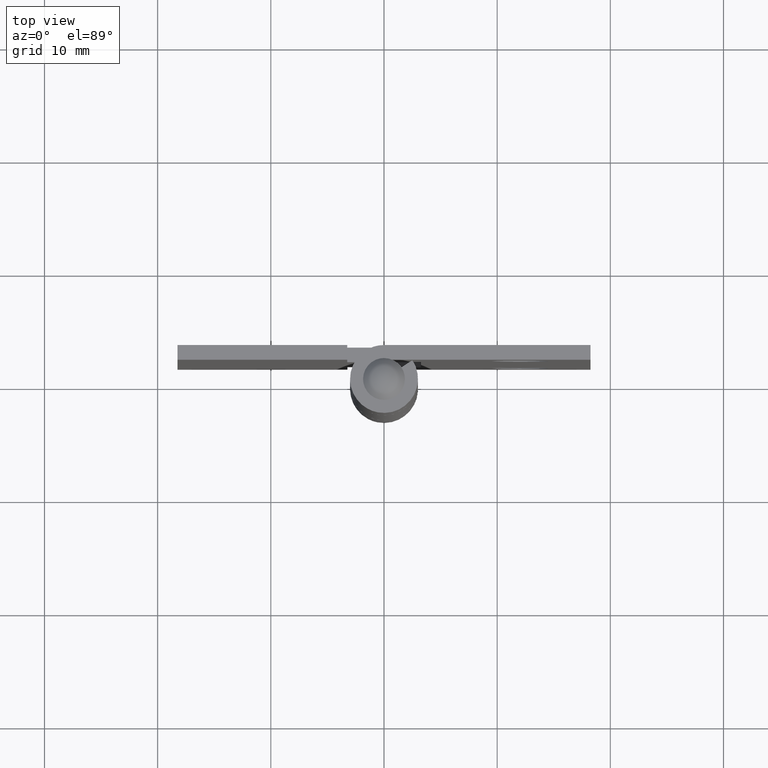
[diagram: clean part render]
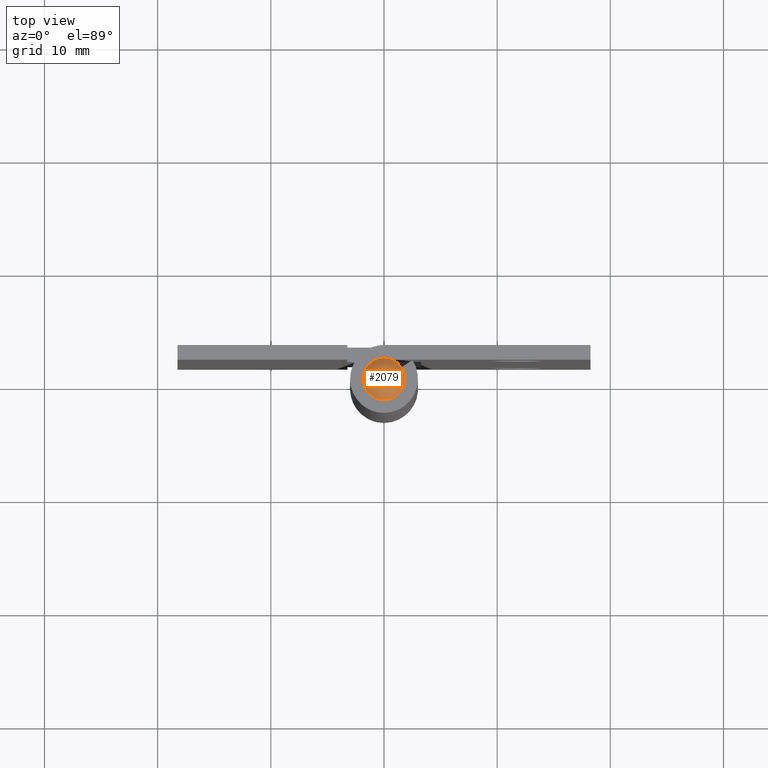
[diagram: same view with one face highlighted and labeled with its STEP entity id]
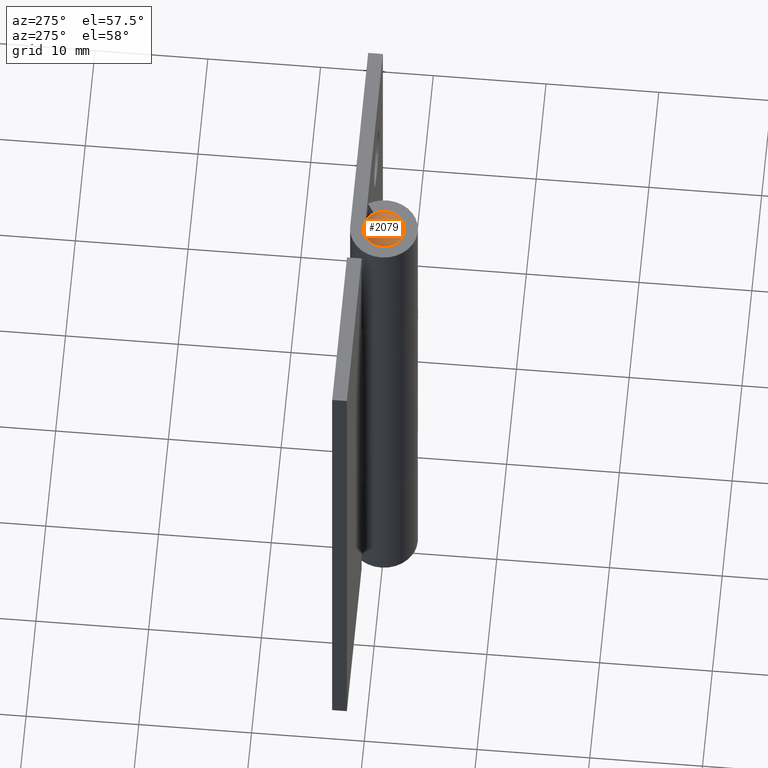
[diagram: same view with one face highlighted and labeled with its STEP entity id]
A machine part, top view. The second image highlights one B-rep face of the part: STEP entity #2079.
A second angle (auxiliary view) of the same face is appended — the face is thin or edge-on in the first view.
In plain terms, the highlighted face is a freeform B-spline surface patch.
Its self-contained STEP definition (entity closure, byte-faithful):
#1978=CARTESIAN_POINT('',(-1.849999832371945,0.0,50.999991999999999));
#1979=VERTEX_POINT('',#1978);
#1980=CARTESIAN_POINT('',(0.000000665241690,1.849999832371826,50.999991999999999));
#1981=VERTEX_POINT('',#1980);
#1982=CARTESIAN_POINT('',(-1.849999832371945,0.0,50.999991999999999));
#1983=CARTESIAN_POINT('',(-1.850016640789123,0.128650294420443,50.999992000000091));
#1984=CARTESIAN_POINT('',(-1.823057305751236,0.385943846764462,50.999991999999843));
#1985=CARTESIAN_POINT('',(-1.701267369636377,0.762402570855216,50.999992000000191));
#1986=CARTESIAN_POINT('',(-1.517227314252216,1.078137414983173,50.999991999999850));
#1987=CARTESIAN_POINT('',(-1.242597332428976,1.392675609736863,50.999991999999963));
#1988=CARTESIAN_POINT('',(-0.889215141688170,1.648117006538312,50.999992000000091));
#1989=CARTESIAN_POINT('',(-0.438911558514225,1.815426388110510,50.999991999999942));
#1990=CARTESIAN_POINT('',(-0.143783961838430,1.850025091454358,50.999992000000042));
#1991=CARTESIAN_POINT('',(0.000000665241690,1.849999832371826,50.999991999999999));
#1992=B_SPLINE_CURVE_WITH_KNOTS('',3,(#1982,#1983,#1984,#1985,#1986,#1987,#1988,#1989,#1990,#1991),.UNSPECIFIED.,.F.,.U.,(4,1,1,1,1,1,1,4),(0.000000073667235,0.385950428613312,0.771904188103778,1.180574316906528,1.475676315553560,2.020567561823910,2.474638995333617,2.905991549958694),.UNSPECIFIED.);
#1993=EDGE_CURVE('',#1979,#1981,#1992,.T.);
#1995=CARTESIAN_POINT('',(1.849999832371945,0.0,50.999991999999999));
#1996=VERTEX_POINT('',#1995);
#1997=CARTESIAN_POINT('',(0.000000665241690,1.849999832371826,50.999991999999999));
#1998=CARTESIAN_POINT('',(0.128651033958599,1.850019056619461,50.999992000000013));
#1999=CARTESIAN_POINT('',(0.385935891643017,1.823042520395598,50.999992000000049));
#2000=CARTESIAN_POINT('',(0.820362929646306,1.682597291554843,50.999991999999587));
#2001=CARTESIAN_POINT('',(1.173680354226304,1.452739556523690,50.999992000000738));
#2002=CARTESIAN_POINT('',(1.461405720867216,1.150393936825342,50.999991999999537));
#2003=CARTESIAN_POINT('',(1.666679359640231,0.839160052652302,50.999992000000333));
#2004=CARTESIAN_POINT('',(1.815431411425448,0.438914582448884,50.999991999999871));
#2005=CARTESIAN_POINT('',(1.850024947244144,0.143784890743250,50.999992000000042));
#2006=CARTESIAN_POINT('',(1.849999832371945,0.0,50.999991999999999));
#2007=B_SPLINE_CURVE_WITH_KNOTS('',3,(#1997,#1998,#1999,#2000,#2001,#2002,#2003,#2004,#2005,#2006),.UNSPECIFIED.,.F.,.U.,(4,1,1,1,1,1,1,4),(0.000000073898482,0.385950329082652,0.771903989126969,1.362195138434383,1.634604146662832,2.020567040022371,2.474638356356674,2.905990800071560),.UNSPECIFIED.);
#2008=EDGE_CURVE('',#1981,#1996,#2007,.T.);
#2010=CARTESIAN_POINT('',(-0.000000665241701,-1.849999832371826,50.999992000000013));
#2011=VERTEX_POINT('',#2010);
#2012=CARTESIAN_POINT('',(1.849999832371945,0.0,50.999991999999999));
#2013=CARTESIAN_POINT('',(1.850065762082334,-0.174063603737082,50.999991999999942));
#2014=CARTESIAN_POINT('',(1.813410694372309,-0.431320664181383,50.999992000000148));
#2015=CARTESIAN_POINT('',(1.686037032885145,-0.780480698522993,50.999991999999878));
#2016=CARTESIAN_POINT('',(1.519325391472601,-1.079084276766973,50.999992000000027));
#2017=CARTESIAN_POINT('',(1.293786736654018,-1.337312411898839,50.999992000000269));
#2018=CARTESIAN_POINT('',(1.002193540002617,-1.567766170475532,50.999991999999573));
#2019=CARTESIAN_POINT('',(0.597720794804394,-1.780838076362697,50.999992000000439));
#2020=CARTESIAN_POINT('',(0.227060796821590,-1.850208246156835,50.999991999999907));
#2021=CARTESIAN_POINT('',(-0.000000665241701,-1.849999832371826,50.999992000000013));
#2022=B_SPLINE_CURVE_WITH_KNOTS('',3,(#2012,#2013,#2014,#2015,#2016,#2017,#2018,#2019,#2020,#2021),.UNSPECIFIED.,.F.,.U.,(4,1,1,1,1,1,1,4),(0.000000073667188,0.522165999190207,0.771904188103759,1.112453658969567,1.543796417263995,1.793539027221947,2.224900194718845,2.905991549958701),.UNSPECIFIED.);
#2023=EDGE_CURVE('',#1996,#2011,#2022,.T.);
#2025=CARTESIAN_POINT('',(-0.000000665241701,-1.849999832371826,50.999992000000013));
#2026=CARTESIAN_POINT('',(-0.128651180547190,-1.850019084137665,50.999991999999963));
#2027=CARTESIAN_POINT('',(-0.385935053876655,-1.823041776776693,50.999992000000027));
#2028=CARTESIAN_POINT('',(-0.820366949290053,-1.682600892688338,50.999991999999892));
#2029=CARTESIAN_POINT('',(-1.173668682880030,-1.452729356963000,50.999992000000361));
#2030=CARTESIAN_POINT('',(-1.487599003667435,-1.122936895200064,50.999991999999793));
#2031=CARTESIAN_POINT('',(-1.699946040731774,-0.778372728431409,50.999992000000411));
#2032=CARTESIAN_POINT('',(-1.826258426262490,-0.370813337610739,50.999991999999949));
#2033=CARTESIAN_POINT('',(-1.850007473334517,-0.113512991389882,50.999991999999978));
#2034=CARTESIAN_POINT('',(-1.849999832371945,0.0,50.999991999999999));
#2035=B_SPLINE_CURVE_WITH_KNOTS('',3,(#2025,#2026,#2027,#2028,#2029,#2030,#2031,#2032,#2033,#2034),.UNSPECIFIED.,.F.,.U.,(4,1,1,1,1,1,1,4),(0.000000073898411,0.385950329082601,0.771903989126931,1.362195138434362,1.634604146662827,2.134086615161307,2.565447671533758,2.905990800071555),.UNSPECIFIED.);
#2036=EDGE_CURVE('',#2011,#1979,#2035,.T.);
#2049=CARTESIAN_POINT('',(-1.540371222209154,-1.540371222209122,50.168358910930785));
#2050=CARTESIAN_POINT('',(-0.971331976958634,-1.942663953917131,50.844998183247966));
#2051=CARTESIAN_POINT('',(0.971331955146043,-1.942663953917131,50.844998183248052));
#2052=CARTESIAN_POINT('',(1.540371201944538,-1.540371236535541,50.168358935027385));
#2053=CARTESIAN_POINT('',(-1.942663953917222,-0.971331976958543,50.844998183247881));
#2054=CARTESIAN_POINT('',(-1.314682455565821,-1.314682455565631,52.0));
#2055=CARTESIAN_POINT('',(1.314682426042756,-1.314682455565631,52.000000000000121));
#2056=CARTESIAN_POINT('',(1.942663933078872,-0.971331988351913,50.844998221574386));
#2057=CARTESIAN_POINT('',(-1.942663953917222,0.971331955146134,50.844998183247796));
#2058=CARTESIAN_POINT('',(-1.314682455565821,1.314682426042947,51.999999999999893));
#2059=CARTESIAN_POINT('',(1.314682426042756,1.314682426042947,52.000000000000007));
#2060=CARTESIAN_POINT('',(1.942663933078872,0.971331966539503,50.844998221574301));
#2061=CARTESIAN_POINT('',(-1.540371236535574,1.540371201944571,50.168358935027101));
#2062=CARTESIAN_POINT('',(-0.971331988352004,1.942663933078963,50.844998221574123));
#2063=CARTESIAN_POINT('',(0.971331966539413,1.942663933078963,50.844998221574208));
#2064=CARTESIAN_POINT('',(1.540371216270957,1.540371216270989,50.168358959123651));
#2072=(BOUNDED_SURFACE()B_SPLINE_SURFACE(2,2,((#2049,#2053,#2057,#2061),(#2050,#2054,#2058,#2062),(#2051,#2055,#2059,#2063),(#2052,#2056,#2060,#2064)),.UNSPECIFIED.,.F.,.F.,.U.)B_SPLINE_SURFACE_WITH_KNOTS((3,1,3),(3,1,3),(0.0,2.234444540827349,4.468889031477394),(0.0,2.234444540827361,4.468889031477419),.UNSPECIFIED.)GEOMETRIC_REPRESENTATION_ITEM()RATIONAL_B_SPLINE_SURFACE(((1.706968341930280,1.353484170965140,1.353484170965140,1.706968326054403),(1.353484170965140,1.0,1.0,1.353484155089264),(1.353484170965140,1.0,1.0,1.353484155089264),(1.706968326054403,1.353484155089264,1.353484155089264,1.706968310178527)))REPRESENTATION_ITEM('')SURFACE());
#2073=ORIENTED_EDGE('',*,*,#2036,.F.);
#2074=ORIENTED_EDGE('',*,*,#2023,.F.);
#2075=ORIENTED_EDGE('',*,*,#2008,.F.);
#2076=ORIENTED_EDGE('',*,*,#1993,.F.);
#2077=EDGE_LOOP('',(#2073,#2074,#2075,#2076));
#2078=FACE_OUTER_BOUND('',#2077,.T.);
#2079=ADVANCED_FACE('',(#2078),#2072,.T.);